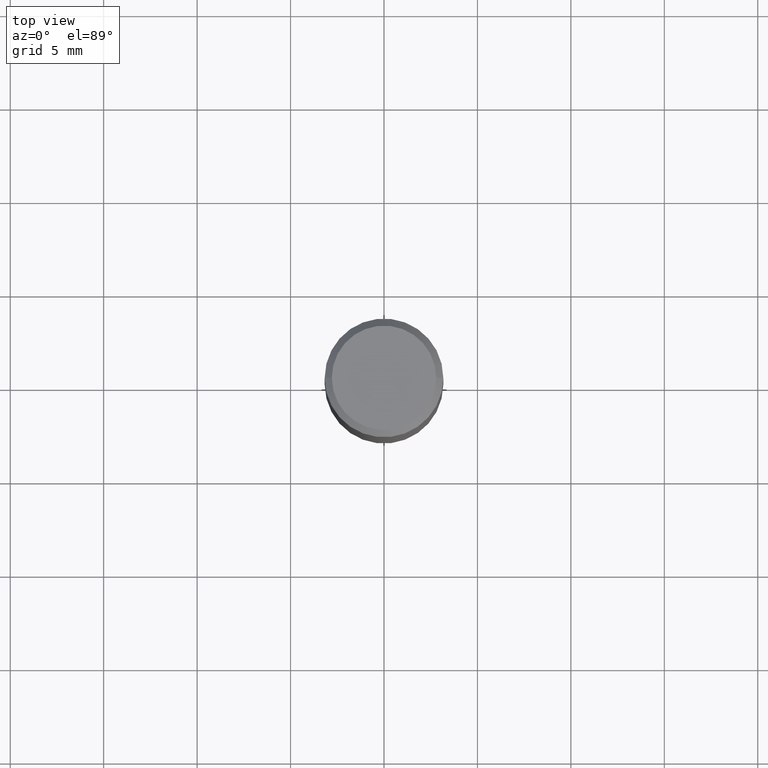
[diagram: clean part render]
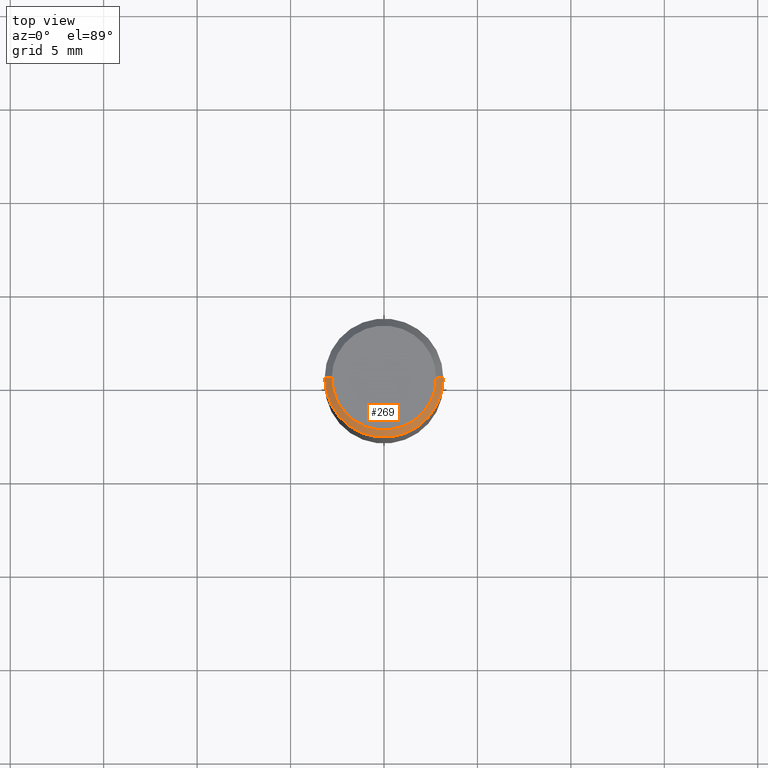
[diagram: same view with one face highlighted and labeled with its STEP entity id]
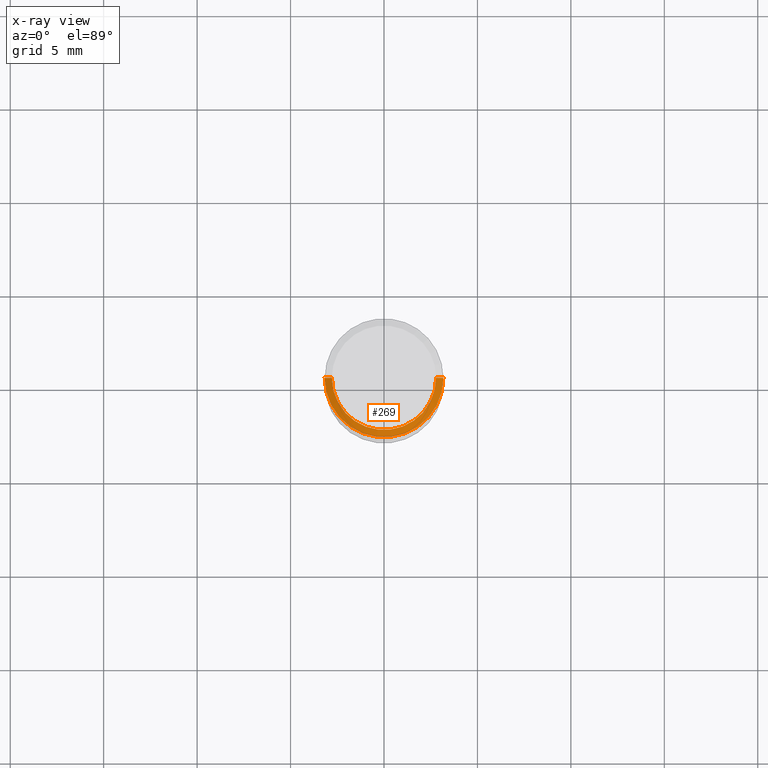
[diagram: x-ray of the same camera — body ghosted, the highlighted face saturated]
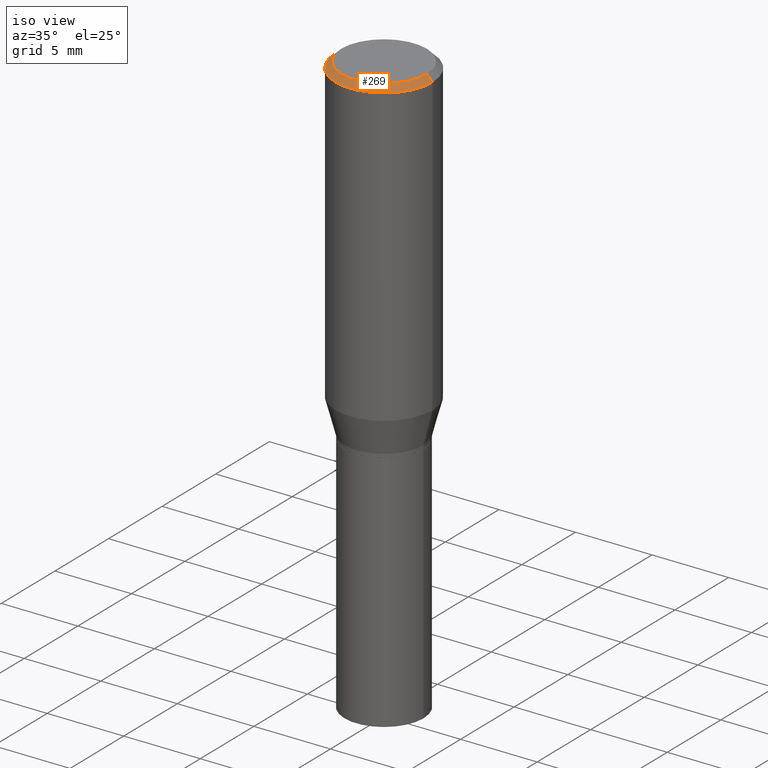
[diagram: same view with one face highlighted and labeled with its STEP entity id]
A machine part, top view. The second image highlights one B-rep face of the part: STEP entity #269.
The next image is the same camera in x-ray: the body ghosted, the highlighted face saturated — about 0% of this face is hidden behind the body in this view.
A second angle (iso view) of the same face is appended — the face is thin or edge-on in the first view.
In plain terms, the highlighted conical surface has half-angle 45 deg.
Its self-contained STEP definition (entity closure, byte-faithful):
#8 = DIRECTION ( 'NONE',  ( -2.445468806185136597E-29, 3.491481338843145583E-15, 1.000000000000000000 ) ) ;
#14 = CARTESIAN_POINT ( 'NONE',  ( 3.668203209277705088E-31, -5.237222008264718399E-17, -0.01499999999999999944 ) ) ;
#31 = VERTEX_POINT ( 'NONE', #142 ) ;
#52 = VERTEX_POINT ( 'NONE', #418 ) ;
#68 = EDGE_CURVE ( 'NONE', #257, #338, #203, .T. ) ;
#70 = CARTESIAN_POINT ( 'NONE',  ( 0.1100000000000000006, -8.322946247794783877E-16, 6.246531070176009917E-17 ) ) ;
#76 = ORIENTED_EDGE ( 'NONE', *, *, #77, .T. ) ;
#77 = EDGE_CURVE ( 'NONE', #31, #52, #89, .T. ) ;
#89 = CIRCLE ( 'NONE', #239, 0.1250000000000000000 ) ;
#97 = EDGE_CURVE ( 'NONE', #338, #52, #381, .T. ) ;
#112 = DIRECTION ( 'NONE',  ( 0.7071067811865459074, -7.319954787623249734E-15, -0.7071067811865491270 ) ) ;
#116 = DIRECTION ( 'NONE',  ( 1.000000000000000000, -6.982962677686266711E-15, 4.873416144172425341E-29 ) ) ;
#142 = CARTESIAN_POINT ( 'NONE',  ( -0.1250000000000000000, -4.952920964692812682E-16, -0.01499999999999999944 ) ) ;
#143 = CARTESIAN_POINT ( 'NONE',  ( -0.1100000000000000006, 7.943120045868128186E-16, 6.246531070174904280E-17 ) ) ;
#150 = DIRECTION ( 'NONE',  ( 1.000000000000000000, -6.982962677686266711E-15, 0.000000000000000000 ) ) ;
#187 = DIRECTION ( 'NONE',  ( -2.445468806185136597E-29, 3.491481338843145583E-15, 1.000000000000000000 ) ) ;
#193 = ORIENTED_EDGE ( 'NONE', *, *, #399, .T. ) ;
#197 = ORIENTED_EDGE ( 'NONE', *, *, #68, .F. ) ;
#203 = CIRCLE ( 'NONE', #387, 0.1100000000000000006 ) ;
#207 = CARTESIAN_POINT ( 'NONE',  ( 3.668203209277705088E-31, -5.237222008264718399E-17, -0.01499999999999999944 ) ) ;
#209 = DIRECTION ( 'NONE',  ( 2.445468806185136597E-29, -3.491481338843145583E-15, -1.000000000000000000 ) ) ;
#220 = CARTESIAN_POINT ( 'NONE',  ( -0.1250000000000000000, 8.204981146281362596E-16, -0.01499999999999999944 ) ) ;
#239 = AXIS2_PLACEMENT_3D ( 'NONE', #14, #8, #150 ) ;
#251 = EDGE_LOOP ( 'NONE', ( #344, #197, #193, #76 ) ) ;
#257 = VERTEX_POINT ( 'NONE', #143 ) ;
#263 = CARTESIAN_POINT ( 'NONE',  ( 0.1250000000000000000, -9.099344698040885245E-16, -0.01499999999999999944 ) ) ;
#269 = ADVANCED_FACE ( 'NONE', ( #290 ), #453, .T. ) ;
#272 = VECTOR ( 'NONE', #342, 39.37007874015748143 ) ;
#290 = FACE_OUTER_BOUND ( 'NONE', #251, .T. ) ;
#291 = DIRECTION ( 'NONE',  ( -1.000000000000000000, 6.982962677686266711E-15, 0.000000000000000000 ) ) ;
#309 = CARTESIAN_POINT ( 'NONE',  ( -1.527569687898032182E-45, 2.180964666402148975E-31, 6.246531070175450319E-17 ) ) ;
#315 = VECTOR ( 'NONE', #112, 39.37007874015748143 ) ;
#331 = LINE ( 'NONE', #220, #272 ) ;
#338 = VERTEX_POINT ( 'NONE', #70 ) ;
#342 = DIRECTION ( 'NONE',  ( -0.7071067811865459074, 2.468850131082240100E-15, -0.7071067811865491270 ) ) ;
#344 = ORIENTED_EDGE ( 'NONE', *, *, #97, .F. ) ;
#381 = LINE ( 'NONE', #263, #315 ) ;
#387 = AXIS2_PLACEMENT_3D ( 'NONE', #309, #187, #116 ) ;
#399 = EDGE_CURVE ( 'NONE', #257, #31, #331, .T. ) ;
#405 = AXIS2_PLACEMENT_3D ( 'NONE', #207, #209, #291 ) ;
#418 = CARTESIAN_POINT ( 'NONE',  ( 0.1250000000000000000, -9.252425547934304180E-16, -0.01499999999999999944 ) ) ;
#453 = CONICAL_SURFACE ( 'NONE', #405, 0.1250000000000000000, 0.7853981633974460586 ) ;